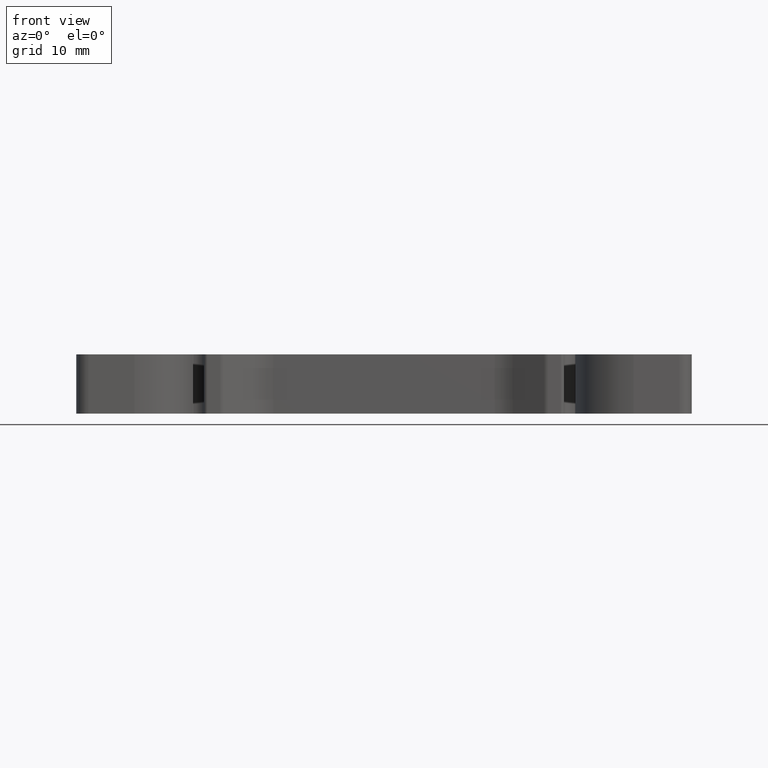
[diagram: clean part render]
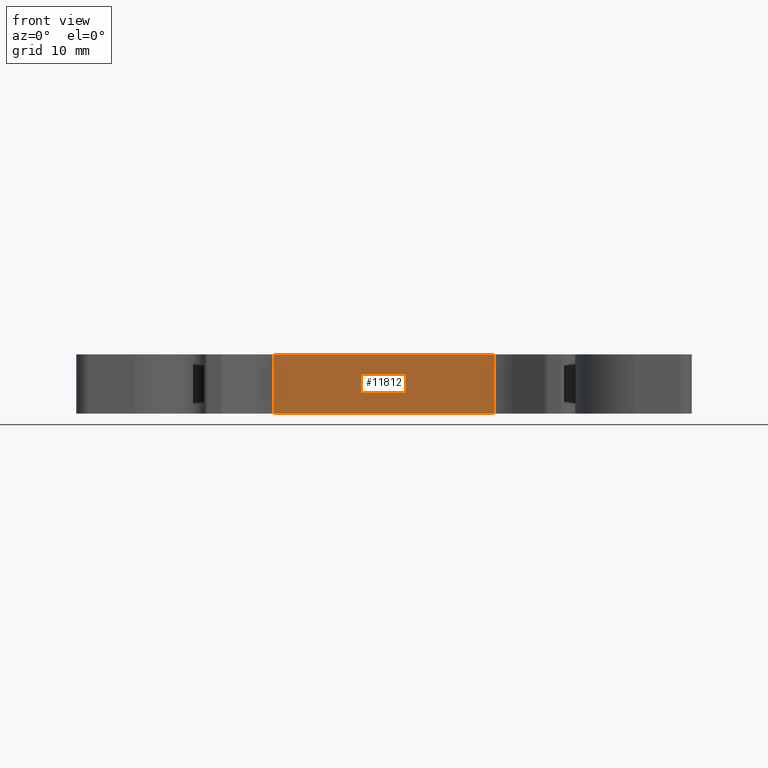
[diagram: same view with one face highlighted and labeled with its STEP entity id]
A machine part, front view. The second image highlights one B-rep face of the part: STEP entity #11812.
In plain terms, the highlighted planar face has unit normal (0, -1, 0).
Its self-contained STEP definition (entity closure, byte-faithful):
#623 = EDGE_LOOP ( 'NONE', ( #11016, #11057, #11069, #11058 ) ) ;
#5057 = LINE ( 'NONE', #5096, #6032 ) ;
#5059 = CARTESIAN_POINT ( 'NONE',  ( 1943.734413166095000, 495.2674875439330400, -50.50000000000000000 ) ) ;
#5063 = LINE ( 'NONE', #5059, #6126 ) ;
#5072 = DIRECTION ( 'NONE',  ( 0.0000000000000000000, 0.0000000000000000000, 1.000000000000000000 ) ) ;
#5090 = DIRECTION ( 'NONE',  ( 0.0000000000000000000, 0.0000000000000000000, 1.000000000000000000 ) ) ;
#5096 = CARTESIAN_POINT ( 'NONE',  ( 1925.005411333645000, 495.2674875439333300, -50.50000000000000000 ) ) ;
#5101 = DIRECTION ( 'NONE',  ( -1.000000000000000000, 8.891742079134019300E-015, 0.0000000000000000000 ) ) ;
#5104 = LINE ( 'NONE', #5126, #6087 ) ;
#5114 = LINE ( 'NONE', #5121, #6085 ) ;
#5121 = CARTESIAN_POINT ( 'NONE',  ( 1943.734413166095000, 495.2674875439331600, -2.500000000000002200 ) ) ;
#5126 = CARTESIAN_POINT ( 'NONE',  ( 1925.005411333645000, 495.2674875439330400, 2.500000000000000000 ) ) ;
#5132 = DIRECTION ( 'NONE',  ( 1.000000000000000000, 0.0000000000000000000, 0.0000000000000000000 ) ) ;
#5239 = FACE_OUTER_BOUND ( 'NONE', #623, .T. ) ;
#5252 = PLANE ( 'NONE',  #6173 ) ;
#5261 = CARTESIAN_POINT ( 'NONE',  ( 1925.005411333645000, 495.2674875439330400, -50.50000000000000000 ) ) ;
#5282 = DIRECTION ( 'NONE',  ( 0.0000000000000000000, -1.000000000000000000, 0.0000000000000000000 ) ) ;
#5328 = DIRECTION ( 'NONE',  ( 0.0000000000000000000, -0.0000000000000000000, -1.000000000000000000 ) ) ;
#6032 = VECTOR ( 'NONE', #5090, 1000.000000000000000 ) ;
#6085 = VECTOR ( 'NONE', #5101, 1000.000000000000000 ) ;
#6087 = VECTOR ( 'NONE', #5132, 1000.000000000000000 ) ;
#6126 = VECTOR ( 'NONE', #5072, 1000.000000000000000 ) ;
#6173 = AXIS2_PLACEMENT_3D ( 'NONE', #5261, #5282, #5328 ) ;
#7828 = CARTESIAN_POINT ( 'NONE',  ( 1943.734413166095000, 495.2674875439332100, -2.500000000000002200 ) ) ;
#7850 = CARTESIAN_POINT ( 'NONE',  ( 1925.005411333645000, 495.2674875439333300, -2.500000000000002200 ) ) ;
#7872 = CARTESIAN_POINT ( 'NONE',  ( 1925.005411333645000, 495.2674875439333300, 2.500000000000000000 ) ) ;
#7893 = CARTESIAN_POINT ( 'NONE',  ( 1943.734413166095000, 495.2674875439330400, 2.500000000000000000 ) ) ;
#8466 = VERTEX_POINT ( 'NONE', #7828 ) ;
#8515 = VERTEX_POINT ( 'NONE', #7872 ) ;
#8530 = VERTEX_POINT ( 'NONE', #7850 ) ;
#8533 = VERTEX_POINT ( 'NONE', #7893 ) ;
#11016 = ORIENTED_EDGE ( 'NONE', *, *, #11762, .F. ) ;
#11057 = ORIENTED_EDGE ( 'NONE', *, *, #11754, .T. ) ;
#11058 = ORIENTED_EDGE ( 'NONE', *, *, #11746, .F. ) ;
#11069 = ORIENTED_EDGE ( 'NONE', *, *, #11769, .F. ) ;
#11746 = EDGE_CURVE ( 'NONE', #8530, #8515, #5057, .T. ) ;
#11754 = EDGE_CURVE ( 'NONE', #8466, #8533, #5063, .T. ) ;
#11762 = EDGE_CURVE ( 'NONE', #8466, #8530, #5114, .T. ) ;
#11769 = EDGE_CURVE ( 'NONE', #8515, #8533, #5104, .T. ) ;
#11812 = ADVANCED_FACE ( 'NONE', ( #5239 ), #5252, .T. ) ;